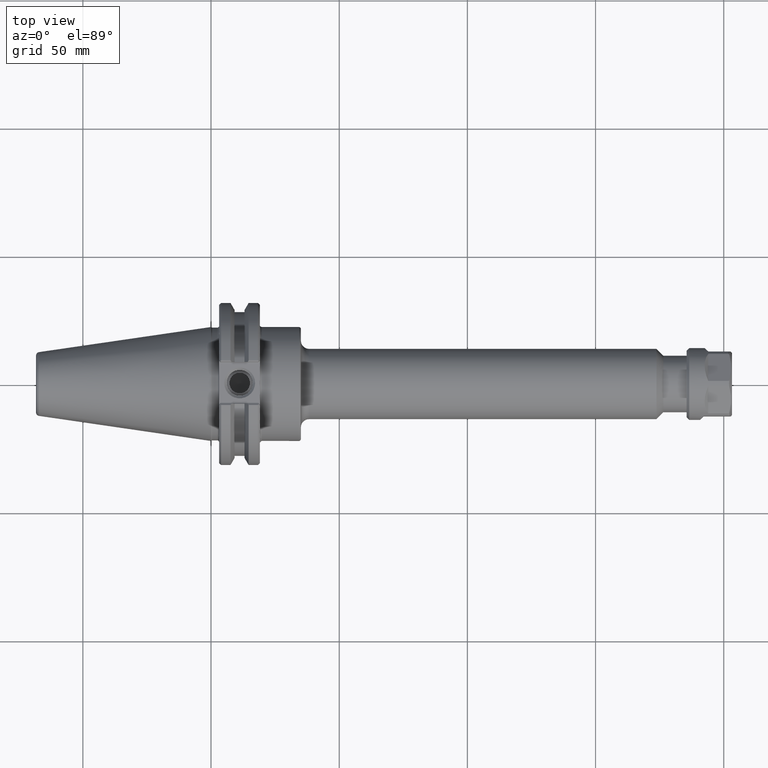
[diagram: clean part render]
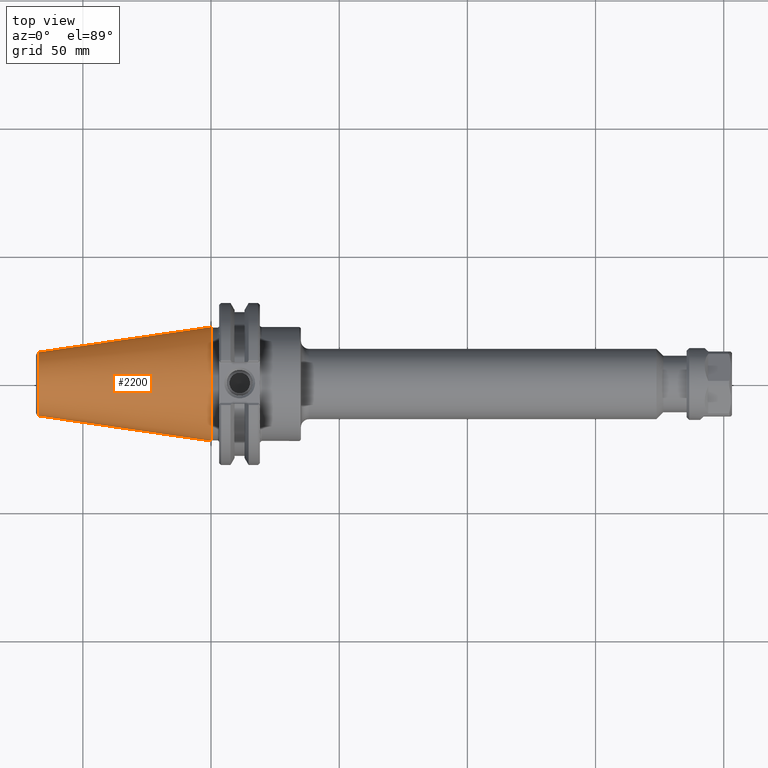
[diagram: same view with one face highlighted and labeled with its STEP entity id]
A machine part, top view. The second image highlights one B-rep face of the part: STEP entity #2200.
In plain terms, the highlighted conical surface has half-angle 8.297 deg.
Its self-contained STEP definition (entity closure, byte-faithful):
#489=FACE_BOUND('',#754,.T.);
#586=FACE_OUTER_BOUND('',#753,.T.);
#753=EDGE_LOOP('',(#1739));
#754=EDGE_LOOP('',(#1740));
#871=CIRCLE('',#2330,0.875);
#886=CIRCLE('',#2399,0.48981834472846);
#990=VERTEX_POINT('',#3325);
#1065=VERTEX_POINT('',#3627);
#1201=EDGE_CURVE('',#990,#990,#871,.T.);
#1318=EDGE_CURVE('',#1065,#1065,#886,.T.);
#1739=ORIENTED_EDGE('',*,*,#1201,.F.);
#1740=ORIENTED_EDGE('',*,*,#1318,.F.);
#2025=CONICAL_SURFACE('',#2401,0.67903993059773,8.297);
#2200=ADVANCED_FACE('',(#586,#489),#2025,.T.);
#2330=AXIS2_PLACEMENT_3D('',#3326,#2671,#2672);
#2399=AXIS2_PLACEMENT_3D('',#3628,#2871,#2872);
#2401=AXIS2_PLACEMENT_3D('',#3630,#2875,#2876);
#2671=DIRECTION('center_axis',(1.,0.,0.));
#2672=DIRECTION('ref_axis',(-1.62451355720802E-13,1.,0.));
#2871=DIRECTION('center_axis',(-1.,-3.56945127670622E-15,7.13890255341328E-16));
#2872=DIRECTION('ref_axis',(3.56945127670622E-15,-1.,2.83346419976399E-30));
#2875=DIRECTION('center_axis',(1.,0.,0.));
#2876=DIRECTION('ref_axis',(-1.62451355720802E-13,1.,0.));
#3325=CARTESIAN_POINT('',(0.,0.875,0.));
#3326=CARTESIAN_POINT('Origin',(0.,0.,0.));
#3627=CARTESIAN_POINT('',(-2.64129243702512,0.489818344728471,-1.19970893607074E-16));
#3628=CARTESIAN_POINT('Origin',(-2.64129243702511,1.13644876536433E-14,
-5.99854468035363E-17));
#3630=CARTESIAN_POINT('Origin',(-1.34375,0.,0.));